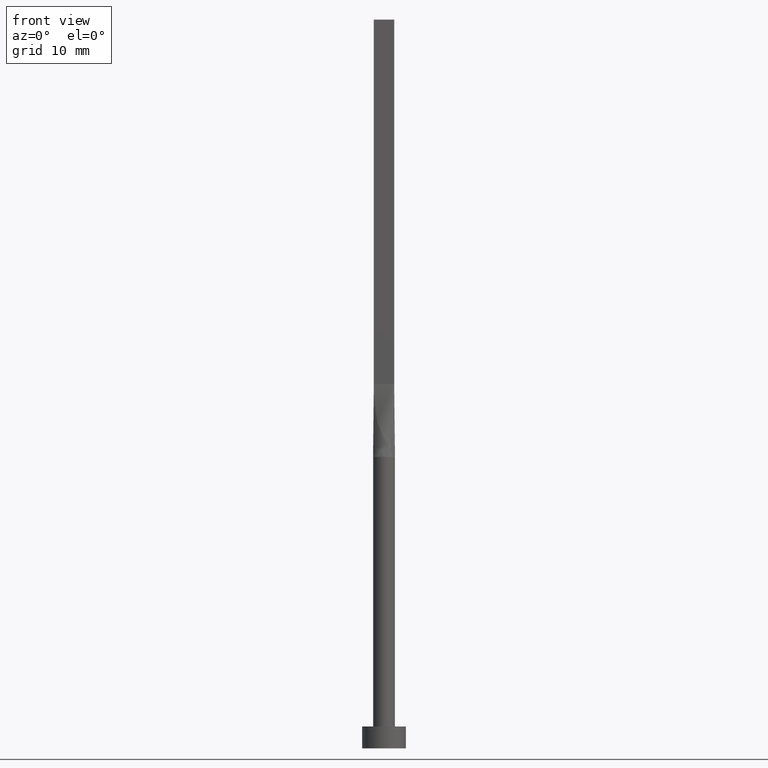
[diagram: clean part render]
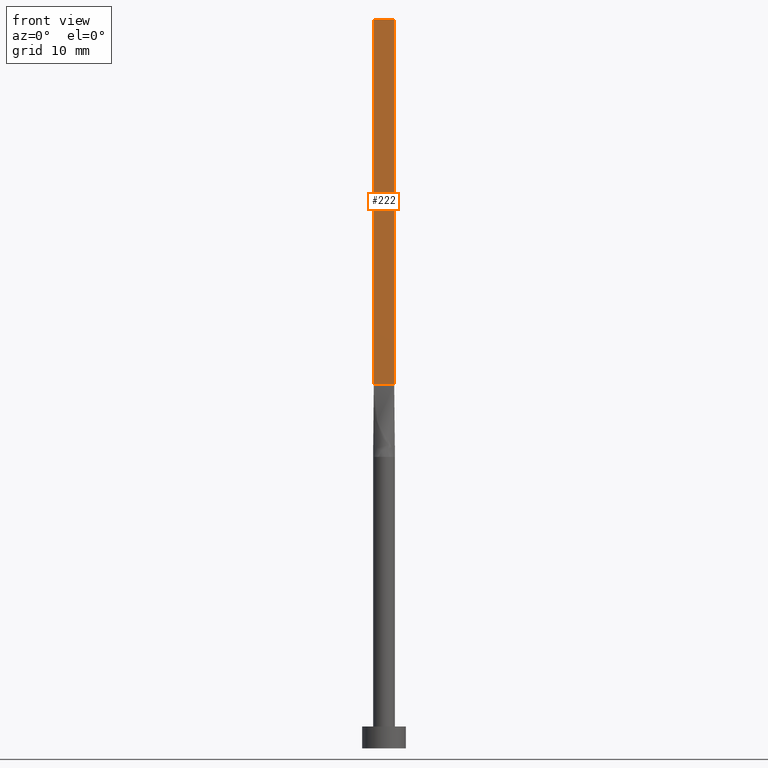
[diagram: same view with one face highlighted and labeled with its STEP entity id]
A machine part, front view. The second image highlights one B-rep face of the part: STEP entity #222.
In plain terms, the highlighted planar face has unit normal (0, 1, -0).
Its self-contained STEP definition (entity closure, byte-faithful):
#14 = DIRECTION ( 'NONE',  ( 1.000000000000000000, -5.808225924029488744E-17, 0.000000000000000000 ) ) ;
#32 = ORIENTED_EDGE ( 'NONE', *, *, #547, .T. ) ;
#39 = EDGE_CURVE ( 'NONE', #466, #545, #436, .T. ) ;
#47 = CARTESIAN_POINT ( 'NONE',  ( -1.399999999999999911, -0.2999999999999996003, 50.00000000000000000 ) ) ;
#49 = VECTOR ( 'NONE', #256, 1000.000000000000000 ) ;
#79 = CARTESIAN_POINT ( 'NONE',  ( -1.399999999999999911, -0.2999999999999996003, 100.0000000000000000 ) ) ;
#81 = EDGE_CURVE ( 'NONE', #466, #108, #389, .T. ) ;
#89 = PLANE ( 'NONE',  #435 ) ;
#108 = VERTEX_POINT ( 'NONE', #217 ) ;
#128 = ORIENTED_EDGE ( 'NONE', *, *, #39, .T. ) ;
#176 = EDGE_CURVE ( 'NONE', #108, #483, #443, .T. ) ;
#188 = VECTOR ( 'NONE', #580, 1000.000000000000000 ) ;
#209 = ORIENTED_EDGE ( 'NONE', *, *, #176, .F. ) ;
#217 = CARTESIAN_POINT ( 'NONE',  ( 1.399999999999999911, -0.2999999999999997669, 100.0000000000000000 ) ) ;
#222 = ADVANCED_FACE ( 'NONE', ( #497 ), #89, .F. ) ;
#228 = CARTESIAN_POINT ( 'NONE',  ( 1.399999999999999911, -0.2999999999999997669, 100.0000000000000000 ) ) ;
#254 = CARTESIAN_POINT ( 'NONE',  ( -1.399999999999999911, -0.2999999999999996003, 100.0000000000000000 ) ) ;
#255 = ORIENTED_EDGE ( 'NONE', *, *, #81, .F. ) ;
#256 = DIRECTION ( 'NONE',  ( -0.000000000000000000, -0.000000000000000000, -1.000000000000000000 ) ) ;
#258 = DIRECTION ( 'NONE',  ( 1.000000000000000000, -5.808225924029488744E-17, 0.000000000000000000 ) ) ;
#278 = DIRECTION ( 'NONE',  ( -1.000000000000000000, 5.808225924029488744E-17, 0.000000000000000000 ) ) ;
#286 = LINE ( 'NONE', #47, #506 ) ;
#322 = CARTESIAN_POINT ( 'NONE',  ( -1.399999999999999911, -0.2999999999999996003, 50.00000000000000000 ) ) ;
#329 = EDGE_LOOP ( 'NONE', ( #32, #209, #255, #128 ) ) ;
#389 = LINE ( 'NONE', #254, #505 ) ;
#422 = CARTESIAN_POINT ( 'NONE',  ( 1.399999999999999911, -0.2999999999999997669, 50.00000000000000000 ) ) ;
#435 = AXIS2_PLACEMENT_3D ( 'NONE', #538, #439, #278 ) ;
#436 = LINE ( 'NONE', #79, #49 ) ;
#439 = DIRECTION ( 'NONE',  ( 5.808225924029488744E-17, 1.000000000000000000, -0.000000000000000000 ) ) ;
#443 = LINE ( 'NONE', #228, #188 ) ;
#466 = VERTEX_POINT ( 'NONE', #528 ) ;
#483 = VERTEX_POINT ( 'NONE', #422 ) ;
#497 = FACE_OUTER_BOUND ( 'NONE', #329, .T. ) ;
#505 = VECTOR ( 'NONE', #258, 1000.000000000000000 ) ;
#506 = VECTOR ( 'NONE', #14, 1000.000000000000000 ) ;
#528 = CARTESIAN_POINT ( 'NONE',  ( -1.399999999999999911, -0.2999999999999996003, 100.0000000000000000 ) ) ;
#538 = CARTESIAN_POINT ( 'NONE',  ( -1.399999999999999911, -0.2999999999999996003, 100.0000000000000000 ) ) ;
#545 = VERTEX_POINT ( 'NONE', #322 ) ;
#547 = EDGE_CURVE ( 'NONE', #545, #483, #286, .T. ) ;
#580 = DIRECTION ( 'NONE',  ( -0.000000000000000000, -0.000000000000000000, -1.000000000000000000 ) ) ;